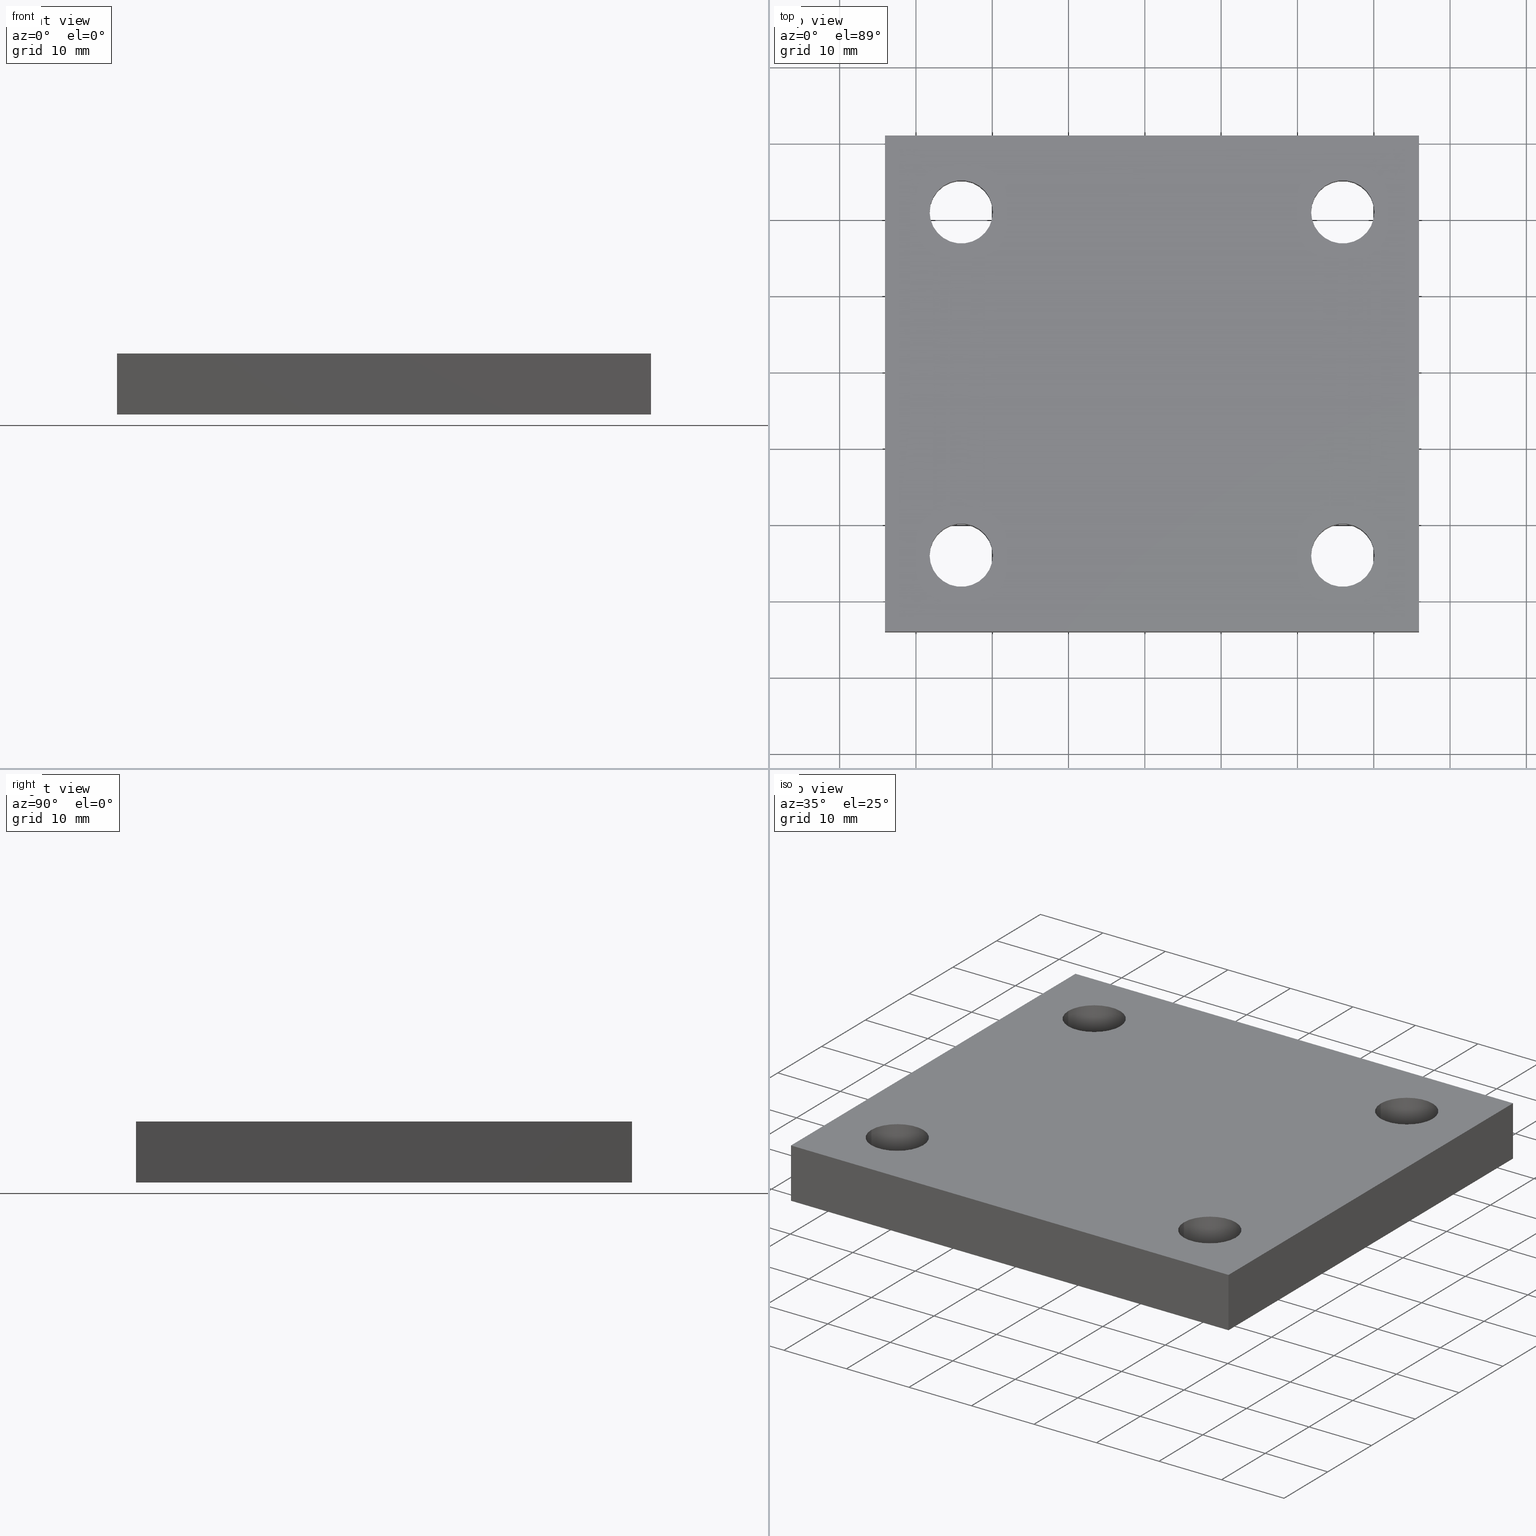
[diagram: canonical four-view strip — front | top / right | iso, engineering-drawing reading convention]
A machine part, canonical four-view strip (front | top / right | iso — engineering-drawing reading convention). The complete STEP part file that produces these views, byte-faithful:
ISO-10303-21;
HEADER;
/****************************************************************
 * Generated by software with PDE/Lib inside                    *
 * PDElib Version 4.0, created Mon Oct 07, 2002 at 18:44:48     *
 * International Technegroup Inc. (www.iti-oh.com)              *
 ****************************************************************/
FILE_DESCRIPTION((''),'2;1');
FILE_NAME('C:\\DATA\\V�KRESY 2004\\UP�NKY\\P��SLU�ENSTV� PRO T̎K� UP�NKY\\616P4.stp','2005-09-29T15:04:47',('CAD'),(''),'Autodesk Inventor 8','Autodesk Inventor 8','');
FILE_SCHEMA(('AUTOMOTIVE_DESIGN { 1 0 10303 214 1 1 1 1 }'));
ENDSEC;
DATA;
#5=APPLICATION_CONTEXT('automotive design');
#6=APPLICATION_PROTOCOL_DEFINITION('Draft International Standard','automotive_design',1998,#5);
#7=PRODUCT_CONTEXT('None',#5,'mechanical');
#8=PRODUCT('616-25E1','616-25E1','None',(#7));
#9=PRODUCT_RELATED_PRODUCT_CATEGORY('part','description',(#8));
#10=PRODUCT_DEFINITION_FORMATION('None','None',#8);
#11=PRODUCT_DEFINITION_CONTEXT('part definition',#5,'design');
#12=PRODUCT_DEFINITION('None','None',#10,#11);
#18=(NAMED_UNIT(*)PLANE_ANGLE_UNIT()SI_UNIT($,.RADIAN.));
#19=DIMENSIONAL_EXPONENTS(0.0,0.0,0.0,0.0,0.0,0.0,0.0);
#20=PLANE_ANGLE_MEASURE_WITH_UNIT(PLANE_ANGLE_MEASURE(0.017453292500000),#18);
#24=(CONVERSION_BASED_UNIT('DEGREE',#20)NAMED_UNIT(#19)PLANE_ANGLE_UNIT());
#28=(NAMED_UNIT(*)SI_UNIT($,.STERADIAN.)SOLID_ANGLE_UNIT());
#32=(LENGTH_UNIT()NAMED_UNIT(*)SI_UNIT(.MILLI.,.METRE.));
#34=UNCERTAINTY_MEASURE_WITH_UNIT(LENGTH_MEASURE(0.000001000000000),#32,'DISTANCE_ACCURACY_VALUE','');
#36=(GEOMETRIC_REPRESENTATION_CONTEXT(3)GLOBAL_UNCERTAINTY_ASSIGNED_CONTEXT((#34))GLOBAL_UNIT_ASSIGNED_CONTEXT((#24,#28,#32))REPRESENTATION_CONTEXT('None','None'));
#37=AXIS2_PLACEMENT_3D('',#38,#39,#40);
#38=CARTESIAN_POINT('',(0.0,0.0,0.0));
#39=DIRECTION('',(0.0,0.0,1.0));
#40=DIRECTION('',(1.0,0.0,0.0));
#41=SHAPE_REPRESENTATION('',(#37),#36);
#42=PRODUCT_DEFINITION_SHAPE('','',#12);
#43=SHAPE_DEFINITION_REPRESENTATION(#42,#41);
#44=CARTESIAN_POINT('',(71.789752180801756,-44.027373815230888,8.0));
#45=CARTESIAN_POINT('',(71.789752180801756,-44.027373815230888,0.0));
#46=CARTESIAN_POINT('',(71.789752180801756,-48.177373815230894,8.0));
#47=CARTESIAN_POINT('',(71.789752180801756,-48.177373815230894,0.0));
#48=CARTESIAN_POINT('',(75.939752180801761,-48.177373815230894,8.0));
#49=CARTESIAN_POINT('',(75.939752180801761,-48.177373815230894,0.0));
#50=CARTESIAN_POINT('',(80.089752180801767,-48.177373815230894,8.0));
#51=CARTESIAN_POINT('',(80.089752180801767,-48.177373815230894,0.0));
#52=CARTESIAN_POINT('',(80.089752180801767,-44.027373815230888,8.0));
#53=CARTESIAN_POINT('',(80.089752180801767,-44.027373815230888,0.0));
#54=CARTESIAN_POINT('',(80.089752180801767,-39.877373815230882,8.0));
#55=CARTESIAN_POINT('',(80.089752180801767,-39.877373815230882,0.0));
#56=CARTESIAN_POINT('',(75.939752180801761,-39.877373815230882,8.0));
#57=CARTESIAN_POINT('',(75.939752180801761,-39.877373815230882,0.0));
#58=CARTESIAN_POINT('',(71.789752180801756,-39.877373815230882,8.0));
#59=CARTESIAN_POINT('',(71.789752180801756,-39.877373815230882,0.0));
#60=CARTESIAN_POINT('',(71.789752180801756,-44.027373815230888,8.0));
#61=CARTESIAN_POINT('',(71.789752180801756,-44.027373815230888,0.0));
#69=(BOUNDED_SURFACE()B_SPLINE_SURFACE(1,2,((#44,#46,#48,#50,#52,#54,#56,#58,#60),(#45,#47,#49,#51,#53,#55,#57,#59,#61)),.UNSPECIFIED.,.F.,.T.,.U.)B_SPLINE_SURFACE_WITH_KNOTS((2,2),(3,2,2,2,3),(-0.963855421686747,0.963855421686747),(0.0,6.518804756198821,13.037609512397642,19.556414268596463,26.075219024795285),.UNSPECIFIED.)GEOMETRIC_REPRESENTATION_ITEM()RATIONAL_B_SPLINE_SURFACE(((1.0,0.707106781186548,1.0,0.707106781186548,1.0,0.707106781186548,1.0,0.707106781186548,1.0),(1.0,0.707106781186548,1.0,0.707106781186548,1.0,0.707106781186548,1.0,0.707106781186548,1.0)))REPRESENTATION_ITEM('')SURFACE());
#70=CARTESIAN_POINT('',(80.089752180801753,-44.027373815230888,0.0));
#71=VERTEX_POINT('',#70);
#72=CARTESIAN_POINT('',(80.089752180801753,-44.027373815230888,8.0));
#73=VERTEX_POINT('',#72);
#74=CARTESIAN_POINT('',(80.089752180801753,-44.027373815230888,0.0));
#75=DIRECTION('',(0.0,0.0,1.0));
#76=VECTOR('',#75,8.0);
#77=LINE('',#74,#76);
#78=EDGE_CURVE('',#71,#73,#77,.T.);
#79=ORIENTED_EDGE('',*,*,#78,.F.);
#80=CARTESIAN_POINT('',(71.789752180801756,-44.027373815230888,0.0));
#81=VERTEX_POINT('',#80);
#82=CARTESIAN_POINT('',(75.939752180801761,-44.027373815230888,0.0));
#83=DIRECTION('',(0.0,0.0,1.0));
#84=DIRECTION('',(1.0,0.0,0.0));
#85=AXIS2_PLACEMENT_3D('',#82,#83,#84);
#86=CIRCLE('',#85,4.150000000000000);
#87=EDGE_CURVE('',#81,#71,#86,.T.);
#88=ORIENTED_EDGE('',*,*,#87,.F.);
#89=CARTESIAN_POINT('',(71.789752180801756,-44.027373815230888,8.0));
#90=VERTEX_POINT('',#89);
#91=CARTESIAN_POINT('',(71.789752180801756,-44.027373815230888,8.0));
#92=DIRECTION('',(0.0,0.0,-1.0));
#93=VECTOR('',#92,8.0);
#94=LINE('',#91,#93);
#95=EDGE_CURVE('',#90,#81,#94,.T.);
#96=ORIENTED_EDGE('',*,*,#95,.F.);
#97=CARTESIAN_POINT('',(75.939752180801761,-44.027373815230888,8.0));
#98=DIRECTION('',(0.0,0.0,-1.0));
#99=DIRECTION('',(1.0,0.0,0.0));
#100=AXIS2_PLACEMENT_3D('',#97,#98,#99);
#101=CIRCLE('',#100,4.150000000000000);
#102=EDGE_CURVE('',#73,#90,#101,.T.);
#103=ORIENTED_EDGE('',*,*,#102,.F.);
#104=EDGE_LOOP('',(#79,#88,#96,#103));
#105=FACE_OUTER_BOUND('',#104,.T.);
#106=ADVANCED_FACE('',(#105),#69,.F.);
#107=CARTESIAN_POINT('',(71.789752180801756,0.972626184769104,8.0));
#108=CARTESIAN_POINT('',(71.789752180801756,0.972626184769104,0.0));
#109=CARTESIAN_POINT('',(71.789752180801756,-3.177373815230901,8.0));
#110=CARTESIAN_POINT('',(71.789752180801756,-3.177373815230901,0.0));
#111=CARTESIAN_POINT('',(75.939752180801761,-3.177373815230902,8.0));
#112=CARTESIAN_POINT('',(75.939752180801761,-3.177373815230902,0.0));
#113=CARTESIAN_POINT('',(80.089752180801767,-3.177373815230901,8.0));
#114=CARTESIAN_POINT('',(80.089752180801767,-3.177373815230901,0.0));
#115=CARTESIAN_POINT('',(80.089752180801767,0.972626184769105,8.0));
#116=CARTESIAN_POINT('',(80.089752180801767,0.972626184769105,0.0));
#117=CARTESIAN_POINT('',(80.089752180801767,5.122626184769110,8.0));
#118=CARTESIAN_POINT('',(80.089752180801767,5.122626184769110,0.0));
#119=CARTESIAN_POINT('',(75.939752180801761,5.122626184769110,8.0));
#120=CARTESIAN_POINT('',(75.939752180801761,5.122626184769110,0.0));
#121=CARTESIAN_POINT('',(71.789752180801756,5.122626184769108,8.0));
#122=CARTESIAN_POINT('',(71.789752180801756,5.122626184769108,0.0));
#123=CARTESIAN_POINT('',(71.789752180801756,0.972626184769104,8.0));
#124=CARTESIAN_POINT('',(71.789752180801756,0.972626184769104,0.0));
#132=(BOUNDED_SURFACE()B_SPLINE_SURFACE(1,2,((#107,#109,#111,#113,#115,#117,#119,#121,#123),(#108,#110,#112,#114,#116,#118,#120,#122,#124)),.UNSPECIFIED.,.F.,.T.,.U.)B_SPLINE_SURFACE_WITH_KNOTS((2,2),(3,2,2,2,3),(-0.963855421686747,0.963855421686747),(0.0,6.518804756198821,13.037609512397642,19.556414268596463,26.075219024795285),.UNSPECIFIED.)GEOMETRIC_REPRESENTATION_ITEM()RATIONAL_B_SPLINE_SURFACE(((1.0,0.707106781186548,1.0,0.707106781186548,1.0,0.707106781186548,1.0,0.707106781186548,1.0),(1.0,0.707106781186548,1.0,0.707106781186548,1.0,0.707106781186548,1.0,0.707106781186548,1.0)))REPRESENTATION_ITEM('')SURFACE());
#133=CARTESIAN_POINT('',(80.089752180801753,0.972626184769104,0.0));
#134=VERTEX_POINT('',#133);
#135=CARTESIAN_POINT('',(80.089752180801753,0.972626184769104,8.0));
#136=VERTEX_POINT('',#135);
#137=CARTESIAN_POINT('',(80.089752180801753,0.972626184769104,0.0));
#138=DIRECTION('',(0.0,0.0,1.0));
#139=VECTOR('',#138,8.0);
#140=LINE('',#137,#139);
#141=EDGE_CURVE('',#134,#136,#140,.T.);
#142=ORIENTED_EDGE('',*,*,#141,.F.);
#143=CARTESIAN_POINT('',(71.789752180801756,0.972626184769105,0.0));
#144=VERTEX_POINT('',#143);
#145=CARTESIAN_POINT('',(75.939752180801761,0.972626184769104,0.0));
#146=DIRECTION('',(0.0,0.0,1.0));
#147=DIRECTION('',(1.0,0.0,0.0));
#148=AXIS2_PLACEMENT_3D('',#145,#146,#147);
#149=CIRCLE('',#148,4.150000000000000);
#150=EDGE_CURVE('',#144,#134,#149,.T.);
#151=ORIENTED_EDGE('',*,*,#150,.F.);
#152=CARTESIAN_POINT('',(71.789752180801756,0.972626184769105,8.0));
#153=VERTEX_POINT('',#152);
#154=CARTESIAN_POINT('',(71.789752180801756,0.972626184769105,8.0));
#155=DIRECTION('',(0.0,0.0,-1.0));
#156=VECTOR('',#155,8.0);
#157=LINE('',#154,#156);
#158=EDGE_CURVE('',#153,#144,#157,.T.);
#159=ORIENTED_EDGE('',*,*,#158,.F.);
#160=CARTESIAN_POINT('',(75.939752180801761,0.972626184769104,8.0));
#161=DIRECTION('',(0.0,0.0,-1.0));
#162=DIRECTION('',(1.0,0.0,0.0));
#163=AXIS2_PLACEMENT_3D('',#160,#161,#162);
#164=CIRCLE('',#163,4.150000000000000);
#165=EDGE_CURVE('',#136,#153,#164,.T.);
#166=ORIENTED_EDGE('',*,*,#165,.F.);
#167=EDGE_LOOP('',(#142,#151,#159,#166));
#168=FACE_OUTER_BOUND('',#167,.T.);
#169=ADVANCED_FACE('',(#168),#132,.F.);
#170=CARTESIAN_POINT('',(21.789752180801720,0.972626184769104,8.0));
#171=CARTESIAN_POINT('',(21.789752180801720,0.972626184769104,0.0));
#172=CARTESIAN_POINT('',(21.789752180801720,-3.177373815230894,8.0));
#173=CARTESIAN_POINT('',(21.789752180801720,-3.177373815230894,0.0));
#174=CARTESIAN_POINT('',(25.939752180801719,-3.177373815230895,8.0));
#175=CARTESIAN_POINT('',(25.939752180801719,-3.177373815230895,0.0));
#176=CARTESIAN_POINT('',(30.089752180801721,-3.177373815230893,8.0));
#177=CARTESIAN_POINT('',(30.089752180801721,-3.177373815230893,0.0));
#178=CARTESIAN_POINT('',(30.089752180801717,0.972626184769105,8.0));
#179=CARTESIAN_POINT('',(30.089752180801717,0.972626184769105,0.0));
#180=CARTESIAN_POINT('',(30.089752180801721,5.122626184769103,8.0));
#181=CARTESIAN_POINT('',(30.089752180801721,5.122626184769103,0.0));
#182=CARTESIAN_POINT('',(25.939752180801719,5.122626184769103,8.0));
#183=CARTESIAN_POINT('',(25.939752180801719,5.122626184769103,0.0));
#184=CARTESIAN_POINT('',(21.789752180801720,5.122626184769101,8.0));
#185=CARTESIAN_POINT('',(21.789752180801720,5.122626184769101,0.0));
#186=CARTESIAN_POINT('',(21.789752180801720,0.972626184769104,8.0));
#187=CARTESIAN_POINT('',(21.789752180801720,0.972626184769104,0.0));
#195=(BOUNDED_SURFACE()B_SPLINE_SURFACE(1,2,((#170,#172,#174,#176,#178,#180,#182,#184,#186),(#171,#173,#175,#177,#179,#181,#183,#185,#187)),.UNSPECIFIED.,.F.,.T.,.U.)B_SPLINE_SURFACE_WITH_KNOTS((2,2),(3,2,2,2,3),(-0.963855421686747,0.963855421686747),(0.0,6.518804756198821,13.037609512397642,19.556414268596463,26.075219024795285),.UNSPECIFIED.)GEOMETRIC_REPRESENTATION_ITEM()RATIONAL_B_SPLINE_SURFACE(((1.0,0.707106781186548,1.0,0.707106781186548,1.0,0.707106781186548,1.0,0.707106781186548,1.0),(1.0,0.707106781186548,1.0,0.707106781186548,1.0,0.707106781186548,1.0,0.707106781186548,1.0)))REPRESENTATION_ITEM('')SURFACE());
#196=CARTESIAN_POINT('',(30.089752180801721,0.972626184769104,0.0));
#197=VERTEX_POINT('',#196);
#198=CARTESIAN_POINT('',(30.089752180801721,0.972626184769104,8.0));
#199=VERTEX_POINT('',#198);
#200=CARTESIAN_POINT('',(30.089752180801721,0.972626184769104,0.0));
#201=DIRECTION('',(0.0,0.0,1.0));
#202=VECTOR('',#201,8.0);
#203=LINE('',#200,#202);
#204=EDGE_CURVE('',#197,#199,#203,.T.);
#205=ORIENTED_EDGE('',*,*,#204,.F.);
#206=CARTESIAN_POINT('',(21.789752180801720,0.972626184769105,0.0));
#207=VERTEX_POINT('',#206);
#208=CARTESIAN_POINT('',(25.939752180801719,0.972626184769104,0.0));
#209=DIRECTION('',(0.0,0.0,1.0));
#210=DIRECTION('',(1.0,0.0,0.0));
#211=AXIS2_PLACEMENT_3D('',#208,#209,#210);
#212=CIRCLE('',#211,4.150000000000000);
#213=EDGE_CURVE('',#207,#197,#212,.T.);
#214=ORIENTED_EDGE('',*,*,#213,.F.);
#215=CARTESIAN_POINT('',(21.789752180801720,0.972626184769105,8.0));
#216=VERTEX_POINT('',#215);
#217=CARTESIAN_POINT('',(21.789752180801720,0.972626184769105,8.0));
#218=DIRECTION('',(0.0,0.0,-1.0));
#219=VECTOR('',#218,8.0);
#220=LINE('',#217,#219);
#221=EDGE_CURVE('',#216,#207,#220,.T.);
#222=ORIENTED_EDGE('',*,*,#221,.F.);
#223=CARTESIAN_POINT('',(25.939752180801719,0.972626184769104,8.0));
#224=DIRECTION('',(0.0,0.0,-1.0));
#225=DIRECTION('',(1.0,0.0,0.0));
#226=AXIS2_PLACEMENT_3D('',#223,#224,#225);
#227=CIRCLE('',#226,4.150000000000000);
#228=EDGE_CURVE('',#199,#216,#227,.T.);
#229=ORIENTED_EDGE('',*,*,#228,.F.);
#230=EDGE_LOOP('',(#205,#214,#222,#229));
#231=FACE_OUTER_BOUND('',#230,.T.);
#232=ADVANCED_FACE('',(#231),#195,.F.);
#233=CARTESIAN_POINT('',(21.789752180801720,-44.027373815230888,8.0));
#234=CARTESIAN_POINT('',(21.789752180801720,-44.027373815230888,0.0));
#235=CARTESIAN_POINT('',(21.789752180801720,-48.177373815230887,8.0));
#236=CARTESIAN_POINT('',(21.789752180801720,-48.177373815230887,0.0));
#237=CARTESIAN_POINT('',(25.939752180801719,-48.177373815230887,8.0));
#238=CARTESIAN_POINT('',(25.939752180801719,-48.177373815230887,0.0));
#239=CARTESIAN_POINT('',(30.089752180801721,-48.177373815230887,8.0));
#240=CARTESIAN_POINT('',(30.089752180801721,-48.177373815230887,0.0));
#241=CARTESIAN_POINT('',(30.089752180801717,-44.027373815230888,8.0));
#242=CARTESIAN_POINT('',(30.089752180801717,-44.027373815230888,0.0));
#243=CARTESIAN_POINT('',(30.089752180801721,-39.877373815230889,8.0));
#244=CARTESIAN_POINT('',(30.089752180801721,-39.877373815230889,0.0));
#245=CARTESIAN_POINT('',(25.939752180801719,-39.877373815230889,8.0));
#246=CARTESIAN_POINT('',(25.939752180801719,-39.877373815230889,0.0));
#247=CARTESIAN_POINT('',(21.789752180801720,-39.877373815230889,8.0));
#248=CARTESIAN_POINT('',(21.789752180801720,-39.877373815230889,0.0));
#249=CARTESIAN_POINT('',(21.789752180801720,-44.027373815230888,8.0));
#250=CARTESIAN_POINT('',(21.789752180801720,-44.027373815230888,0.0));
#258=(BOUNDED_SURFACE()B_SPLINE_SURFACE(1,2,((#233,#235,#237,#239,#241,#243,#245,#247,#249),(#234,#236,#238,#240,#242,#244,#246,#248,#250)),.UNSPECIFIED.,.F.,.T.,.U.)B_SPLINE_SURFACE_WITH_KNOTS((2,2),(3,2,2,2,3),(-0.963855421686747,0.963855421686747),(0.0,6.518804756198821,13.037609512397642,19.556414268596463,26.075219024795285),.UNSPECIFIED.)GEOMETRIC_REPRESENTATION_ITEM()RATIONAL_B_SPLINE_SURFACE(((1.0,0.707106781186548,1.0,0.707106781186548,1.0,0.707106781186548,1.0,0.707106781186548,1.0),(1.0,0.707106781186548,1.0,0.707106781186548,1.0,0.707106781186548,1.0,0.707106781186548,1.0)))REPRESENTATION_ITEM('')SURFACE());
#259=CARTESIAN_POINT('',(30.089752180801721,-44.027373815230888,0.0));
#260=VERTEX_POINT('',#259);
#261=CARTESIAN_POINT('',(30.089752180801721,-44.027373815230888,8.0));
#262=VERTEX_POINT('',#261);
#263=CARTESIAN_POINT('',(30.089752180801721,-44.027373815230888,0.0));
#264=DIRECTION('',(0.0,0.0,1.0));
#265=VECTOR('',#264,8.0);
#266=LINE('',#263,#265);
#267=EDGE_CURVE('',#260,#262,#266,.T.);
#268=ORIENTED_EDGE('',*,*,#267,.F.);
#269=CARTESIAN_POINT('',(21.789752180801720,-44.027373815230888,0.0));
#270=VERTEX_POINT('',#269);
#271=CARTESIAN_POINT('',(25.939752180801719,-44.027373815230888,0.0));
#272=DIRECTION('',(0.0,0.0,1.0));
#273=DIRECTION('',(1.0,0.0,0.0));
#274=AXIS2_PLACEMENT_3D('',#271,#272,#273);
#275=CIRCLE('',#274,4.150000000000000);
#276=EDGE_CURVE('',#270,#260,#275,.T.);
#277=ORIENTED_EDGE('',*,*,#276,.F.);
#278=CARTESIAN_POINT('',(21.789752180801720,-44.027373815230888,8.0));
#279=VERTEX_POINT('',#278);
#280=CARTESIAN_POINT('',(21.789752180801720,-44.027373815230888,8.0));
#281=DIRECTION('',(0.0,0.0,-1.0));
#282=VECTOR('',#281,8.0);
#283=LINE('',#280,#282);
#284=EDGE_CURVE('',#279,#270,#283,.T.);
#285=ORIENTED_EDGE('',*,*,#284,.F.);
#286=CARTESIAN_POINT('',(25.939752180801719,-44.027373815230888,8.0));
#287=DIRECTION('',(0.0,0.0,-1.0));
#288=DIRECTION('',(1.0,0.0,0.0));
#289=AXIS2_PLACEMENT_3D('',#286,#287,#288);
#290=CIRCLE('',#289,4.150000000000000);
#291=EDGE_CURVE('',#262,#279,#290,.T.);
#292=ORIENTED_EDGE('',*,*,#291,.F.);
#293=EDGE_LOOP('',(#268,#277,#285,#292));
#294=FACE_OUTER_BOUND('',#293,.T.);
#295=ADVANCED_FACE('',(#294),#258,.F.);
#296=CARTESIAN_POINT('',(21.789752180801720,-44.027373815230888,8.0));
#297=CARTESIAN_POINT('',(21.789752180801720,-44.027373815230888,0.0));
#298=CARTESIAN_POINT('',(21.789752180801720,-48.177373815230887,8.0));
#299=CARTESIAN_POINT('',(21.789752180801720,-48.177373815230887,0.0));
#300=CARTESIAN_POINT('',(25.939752180801719,-48.177373815230887,8.0));
#301=CARTESIAN_POINT('',(25.939752180801719,-48.177373815230887,0.0));
#302=CARTESIAN_POINT('',(30.089752180801721,-48.177373815230887,8.0));
#303=CARTESIAN_POINT('',(30.089752180801721,-48.177373815230887,0.0));
#304=CARTESIAN_POINT('',(30.089752180801717,-44.027373815230888,8.0));
#305=CARTESIAN_POINT('',(30.089752180801717,-44.027373815230888,0.0));
#306=CARTESIAN_POINT('',(30.089752180801721,-39.877373815230889,8.0));
#307=CARTESIAN_POINT('',(30.089752180801721,-39.877373815230889,0.0));
#308=CARTESIAN_POINT('',(25.939752180801719,-39.877373815230889,8.0));
#309=CARTESIAN_POINT('',(25.939752180801719,-39.877373815230889,0.0));
#310=CARTESIAN_POINT('',(21.789752180801720,-39.877373815230889,8.0));
#311=CARTESIAN_POINT('',(21.789752180801720,-39.877373815230889,0.0));
#312=CARTESIAN_POINT('',(21.789752180801720,-44.027373815230888,8.0));
#313=CARTESIAN_POINT('',(21.789752180801720,-44.027373815230888,0.0));
#321=(BOUNDED_SURFACE()B_SPLINE_SURFACE(1,2,((#296,#298,#300,#302,#304,#306,#308,#310,#312),(#297,#299,#301,#303,#305,#307,#309,#311,#313)),.UNSPECIFIED.,.F.,.T.,.U.)B_SPLINE_SURFACE_WITH_KNOTS((2,2),(3,2,2,2,3),(-0.963855421686747,0.963855421686747),(0.0,6.518804756198821,13.037609512397642,19.556414268596463,26.075219024795285),.UNSPECIFIED.)GEOMETRIC_REPRESENTATION_ITEM()RATIONAL_B_SPLINE_SURFACE(((1.0,0.707106781186548,1.0,0.707106781186548,1.0,0.707106781186548,1.0,0.707106781186548,1.0),(1.0,0.707106781186548,1.0,0.707106781186548,1.0,0.707106781186548,1.0,0.707106781186548,1.0)))REPRESENTATION_ITEM('')SURFACE());
#322=ORIENTED_EDGE('',*,*,#267,.T.);
#323=CARTESIAN_POINT('',(25.939752180801719,-44.027373815230888,8.0));
#324=DIRECTION('',(0.0,0.0,-1.0));
#325=DIRECTION('',(1.0,0.0,0.0));
#326=AXIS2_PLACEMENT_3D('',#323,#324,#325);
#327=CIRCLE('',#326,4.150000000000000);
#328=EDGE_CURVE('',#279,#262,#327,.T.);
#329=ORIENTED_EDGE('',*,*,#328,.F.);
#330=ORIENTED_EDGE('',*,*,#284,.T.);
#331=CARTESIAN_POINT('',(25.939752180801719,-44.027373815230888,0.0));
#332=DIRECTION('',(0.0,0.0,1.0));
#333=DIRECTION('',(1.0,0.0,0.0));
#334=AXIS2_PLACEMENT_3D('',#331,#332,#333);
#335=CIRCLE('',#334,4.150000000000000);
#336=EDGE_CURVE('',#260,#270,#335,.T.);
#337=ORIENTED_EDGE('',*,*,#336,.F.);
#338=EDGE_LOOP('',(#322,#329,#330,#337));
#339=FACE_OUTER_BOUND('',#338,.T.);
#340=ADVANCED_FACE('',(#339),#321,.F.);
#341=CARTESIAN_POINT('',(21.789752180801720,0.972626184769104,8.0));
#342=CARTESIAN_POINT('',(21.789752180801720,0.972626184769104,0.0));
#343=CARTESIAN_POINT('',(21.789752180801720,-3.177373815230894,8.0));
#344=CARTESIAN_POINT('',(21.789752180801720,-3.177373815230894,0.0));
#345=CARTESIAN_POINT('',(25.939752180801719,-3.177373815230895,8.0));
#346=CARTESIAN_POINT('',(25.939752180801719,-3.177373815230895,0.0));
#347=CARTESIAN_POINT('',(30.089752180801721,-3.177373815230893,8.0));
#348=CARTESIAN_POINT('',(30.089752180801721,-3.177373815230893,0.0));
#349=CARTESIAN_POINT('',(30.089752180801717,0.972626184769105,8.0));
#350=CARTESIAN_POINT('',(30.089752180801717,0.972626184769105,0.0));
#351=CARTESIAN_POINT('',(30.089752180801721,5.122626184769103,8.0));
#352=CARTESIAN_POINT('',(30.089752180801721,5.122626184769103,0.0));
#353=CARTESIAN_POINT('',(25.939752180801719,5.122626184769103,8.0));
#354=CARTESIAN_POINT('',(25.939752180801719,5.122626184769103,0.0));
#355=CARTESIAN_POINT('',(21.789752180801720,5.122626184769101,8.0));
#356=CARTESIAN_POINT('',(21.789752180801720,5.122626184769101,0.0));
#357=CARTESIAN_POINT('',(21.789752180801720,0.972626184769104,8.0));
#358=CARTESIAN_POINT('',(21.789752180801720,0.972626184769104,0.0));
#366=(BOUNDED_SURFACE()B_SPLINE_SURFACE(1,2,((#341,#343,#345,#347,#349,#351,#353,#355,#357),(#342,#344,#346,#348,#350,#352,#354,#356,#358)),.UNSPECIFIED.,.F.,.T.,.U.)B_SPLINE_SURFACE_WITH_KNOTS((2,2),(3,2,2,2,3),(-0.963855421686747,0.963855421686747),(0.0,6.518804756198821,13.037609512397642,19.556414268596463,26.075219024795285),.UNSPECIFIED.)GEOMETRIC_REPRESENTATION_ITEM()RATIONAL_B_SPLINE_SURFACE(((1.0,0.707106781186548,1.0,0.707106781186548,1.0,0.707106781186548,1.0,0.707106781186548,1.0),(1.0,0.707106781186548,1.0,0.707106781186548,1.0,0.707106781186548,1.0,0.707106781186548,1.0)))REPRESENTATION_ITEM('')SURFACE());
#367=ORIENTED_EDGE('',*,*,#204,.T.);
#368=CARTESIAN_POINT('',(25.939752180801719,0.972626184769104,8.0));
#369=DIRECTION('',(0.0,0.0,-1.0));
#370=DIRECTION('',(1.0,0.0,0.0));
#371=AXIS2_PLACEMENT_3D('',#368,#369,#370);
#372=CIRCLE('',#371,4.150000000000000);
#373=EDGE_CURVE('',#216,#199,#372,.T.);
#374=ORIENTED_EDGE('',*,*,#373,.F.);
#375=ORIENTED_EDGE('',*,*,#221,.T.);
#376=CARTESIAN_POINT('',(25.939752180801719,0.972626184769104,0.0));
#377=DIRECTION('',(0.0,0.0,1.0));
#378=DIRECTION('',(1.0,0.0,0.0));
#379=AXIS2_PLACEMENT_3D('',#376,#377,#378);
#380=CIRCLE('',#379,4.150000000000000);
#381=EDGE_CURVE('',#197,#207,#380,.T.);
#382=ORIENTED_EDGE('',*,*,#381,.F.);
#383=EDGE_LOOP('',(#367,#374,#375,#382));
#384=FACE_OUTER_BOUND('',#383,.T.);
#385=ADVANCED_FACE('',(#384),#366,.F.);
#386=CARTESIAN_POINT('',(71.789752180801756,0.972626184769104,8.0));
#387=CARTESIAN_POINT('',(71.789752180801756,0.972626184769104,0.0));
#388=CARTESIAN_POINT('',(71.789752180801756,-3.177373815230901,8.0));
#389=CARTESIAN_POINT('',(71.789752180801756,-3.177373815230901,0.0));
#390=CARTESIAN_POINT('',(75.939752180801761,-3.177373815230902,8.0));
#391=CARTESIAN_POINT('',(75.939752180801761,-3.177373815230902,0.0));
#392=CARTESIAN_POINT('',(80.089752180801767,-3.177373815230901,8.0));
#393=CARTESIAN_POINT('',(80.089752180801767,-3.177373815230901,0.0));
#394=CARTESIAN_POINT('',(80.089752180801767,0.972626184769105,8.0));
#395=CARTESIAN_POINT('',(80.089752180801767,0.972626184769105,0.0));
#396=CARTESIAN_POINT('',(80.089752180801767,5.122626184769110,8.0));
#397=CARTESIAN_POINT('',(80.089752180801767,5.122626184769110,0.0));
#398=CARTESIAN_POINT('',(75.939752180801761,5.122626184769110,8.0));
#399=CARTESIAN_POINT('',(75.939752180801761,5.122626184769110,0.0));
#400=CARTESIAN_POINT('',(71.789752180801756,5.122626184769108,8.0));
#401=CARTESIAN_POINT('',(71.789752180801756,5.122626184769108,0.0));
#402=CARTESIAN_POINT('',(71.789752180801756,0.972626184769104,8.0));
#403=CARTESIAN_POINT('',(71.789752180801756,0.972626184769104,0.0));
#411=(BOUNDED_SURFACE()B_SPLINE_SURFACE(1,2,((#386,#388,#390,#392,#394,#396,#398,#400,#402),(#387,#389,#391,#393,#395,#397,#399,#401,#403)),.UNSPECIFIED.,.F.,.T.,.U.)B_SPLINE_SURFACE_WITH_KNOTS((2,2),(3,2,2,2,3),(-0.963855421686747,0.963855421686747),(0.0,6.518804756198821,13.037609512397642,19.556414268596463,26.075219024795285),.UNSPECIFIED.)GEOMETRIC_REPRESENTATION_ITEM()RATIONAL_B_SPLINE_SURFACE(((1.0,0.707106781186548,1.0,0.707106781186548,1.0,0.707106781186548,1.0,0.707106781186548,1.0),(1.0,0.707106781186548,1.0,0.707106781186548,1.0,0.707106781186548,1.0,0.707106781186548,1.0)))REPRESENTATION_ITEM('')SURFACE());
#412=ORIENTED_EDGE('',*,*,#141,.T.);
#413=CARTESIAN_POINT('',(75.939752180801761,0.972626184769104,8.0));
#414=DIRECTION('',(0.0,0.0,-1.0));
#415=DIRECTION('',(1.0,0.0,0.0));
#416=AXIS2_PLACEMENT_3D('',#413,#414,#415);
#417=CIRCLE('',#416,4.150000000000000);
#418=EDGE_CURVE('',#153,#136,#417,.T.);
#419=ORIENTED_EDGE('',*,*,#418,.F.);
#420=ORIENTED_EDGE('',*,*,#158,.T.);
#421=CARTESIAN_POINT('',(75.939752180801761,0.972626184769104,0.0));
#422=DIRECTION('',(0.0,0.0,1.0));
#423=DIRECTION('',(1.0,0.0,0.0));
#424=AXIS2_PLACEMENT_3D('',#421,#422,#423);
#425=CIRCLE('',#424,4.150000000000000);
#426=EDGE_CURVE('',#134,#144,#425,.T.);
#427=ORIENTED_EDGE('',*,*,#426,.F.);
#428=EDGE_LOOP('',(#412,#419,#420,#427));
#429=FACE_OUTER_BOUND('',#428,.T.);
#430=ADVANCED_FACE('',(#429),#411,.F.);
#431=CARTESIAN_POINT('',(71.789752180801756,-44.027373815230888,8.0));
#432=CARTESIAN_POINT('',(71.789752180801756,-44.027373815230888,0.0));
#433=CARTESIAN_POINT('',(71.789752180801756,-48.177373815230894,8.0));
#434=CARTESIAN_POINT('',(71.789752180801756,-48.177373815230894,0.0));
#435=CARTESIAN_POINT('',(75.939752180801761,-48.177373815230894,8.0));
#436=CARTESIAN_POINT('',(75.939752180801761,-48.177373815230894,0.0));
#437=CARTESIAN_POINT('',(80.089752180801767,-48.177373815230894,8.0));
#438=CARTESIAN_POINT('',(80.089752180801767,-48.177373815230894,0.0));
#439=CARTESIAN_POINT('',(80.089752180801767,-44.027373815230888,8.0));
#440=CARTESIAN_POINT('',(80.089752180801767,-44.027373815230888,0.0));
#441=CARTESIAN_POINT('',(80.089752180801767,-39.877373815230882,8.0));
#442=CARTESIAN_POINT('',(80.089752180801767,-39.877373815230882,0.0));
#443=CARTESIAN_POINT('',(75.939752180801761,-39.877373815230882,8.0));
#444=CARTESIAN_POINT('',(75.939752180801761,-39.877373815230882,0.0));
#445=CARTESIAN_POINT('',(71.789752180801756,-39.877373815230882,8.0));
#446=CARTESIAN_POINT('',(71.789752180801756,-39.877373815230882,0.0));
#447=CARTESIAN_POINT('',(71.789752180801756,-44.027373815230888,8.0));
#448=CARTESIAN_POINT('',(71.789752180801756,-44.027373815230888,0.0));
#456=(BOUNDED_SURFACE()B_SPLINE_SURFACE(1,2,((#431,#433,#435,#437,#439,#441,#443,#445,#447),(#432,#434,#436,#438,#440,#442,#444,#446,#448)),.UNSPECIFIED.,.F.,.T.,.U.)B_SPLINE_SURFACE_WITH_KNOTS((2,2),(3,2,2,2,3),(-0.963855421686747,0.963855421686747),(0.0,6.518804756198821,13.037609512397642,19.556414268596463,26.075219024795285),.UNSPECIFIED.)GEOMETRIC_REPRESENTATION_ITEM()RATIONAL_B_SPLINE_SURFACE(((1.0,0.707106781186548,1.0,0.707106781186548,1.0,0.707106781186548,1.0,0.707106781186548,1.0),(1.0,0.707106781186548,1.0,0.707106781186548,1.0,0.707106781186548,1.0,0.707106781186548,1.0)))REPRESENTATION_ITEM('')SURFACE());
#457=ORIENTED_EDGE('',*,*,#78,.T.);
#458=CARTESIAN_POINT('',(75.939752180801761,-44.027373815230888,8.0));
#459=DIRECTION('',(0.0,0.0,-1.0));
#460=DIRECTION('',(1.0,0.0,0.0));
#461=AXIS2_PLACEMENT_3D('',#458,#459,#460);
#462=CIRCLE('',#461,4.150000000000000);
#463=EDGE_CURVE('',#90,#73,#462,.T.);
#464=ORIENTED_EDGE('',*,*,#463,.F.);
#465=ORIENTED_EDGE('',*,*,#95,.T.);
#466=CARTESIAN_POINT('',(75.939752180801761,-44.027373815230888,0.0));
#467=DIRECTION('',(0.0,0.0,1.0));
#468=DIRECTION('',(1.0,0.0,0.0));
#469=AXIS2_PLACEMENT_3D('',#466,#467,#468);
#470=CIRCLE('',#469,4.150000000000000);
#471=EDGE_CURVE('',#71,#81,#470,.T.);
#472=ORIENTED_EDGE('',*,*,#471,.F.);
#473=EDGE_LOOP('',(#457,#464,#465,#472));
#474=FACE_OUTER_BOUND('',#473,.T.);
#475=ADVANCED_FACE('',(#474),#456,.F.);
#476=CARTESIAN_POINT('',(85.939752180801733,10.972626184769112,0.0));
#477=DIRECTION('',(1.0,0.0,0.0));
#478=DIRECTION('',(0.0,0.0,-1.0));
#479=AXIS2_PLACEMENT_3D('',#476,#477,#478);
#480=PLANE('',#479);
#481=CARTESIAN_POINT('',(85.939752180801733,10.972626184769112,8.0));
#482=VERTEX_POINT('',#481);
#483=CARTESIAN_POINT('',(85.939752180801747,-54.027373815230888,8.0));
#484=VERTEX_POINT('',#483);
#485=CARTESIAN_POINT('',(85.939752180801733,10.972626184769112,8.0));
#486=DIRECTION('',(0.0,-1.0,0.0));
#487=VECTOR('',#486,65.0);
#488=LINE('',#485,#487);
#489=EDGE_CURVE('',#482,#484,#488,.T.);
#490=ORIENTED_EDGE('',*,*,#489,.T.);
#491=CARTESIAN_POINT('',(85.939752180801747,-54.027373815230888,0.0));
#492=VERTEX_POINT('',#491);
#493=CARTESIAN_POINT('',(85.939752180801747,-54.027373815230888,0.0));
#494=DIRECTION('',(0.0,0.0,1.0));
#495=VECTOR('',#494,8.0);
#496=LINE('',#493,#495);
#497=EDGE_CURVE('',#492,#484,#496,.T.);
#498=ORIENTED_EDGE('',*,*,#497,.F.);
#499=CARTESIAN_POINT('',(85.939752180801733,10.972626184769112,0.0));
#500=VERTEX_POINT('',#499);
#501=CARTESIAN_POINT('',(85.939752180801747,-54.027373815230888,0.0));
#502=DIRECTION('',(0.0,1.0,0.0));
#503=VECTOR('',#502,65.0);
#504=LINE('',#501,#503);
#505=EDGE_CURVE('',#492,#500,#504,.T.);
#506=ORIENTED_EDGE('',*,*,#505,.T.);
#507=CARTESIAN_POINT('',(85.939752180801733,10.972626184769112,0.0));
#508=DIRECTION('',(0.0,0.0,1.0));
#509=VECTOR('',#508,8.0);
#510=LINE('',#507,#509);
#511=EDGE_CURVE('',#500,#482,#510,.T.);
#512=ORIENTED_EDGE('',*,*,#511,.T.);
#513=EDGE_LOOP('',(#490,#498,#506,#512));
#514=FACE_OUTER_BOUND('',#513,.T.);
#515=ADVANCED_FACE('',(#514),#480,.T.);
#516=CARTESIAN_POINT('',(85.939752180801747,-54.027373815230888,0.0));
#517=DIRECTION('',(0.0,-1.0,0.0));
#518=DIRECTION('',(0.0,0.0,-1.0));
#519=AXIS2_PLACEMENT_3D('',#516,#517,#518);
#520=PLANE('',#519);
#521=CARTESIAN_POINT('',(15.939752180801719,-54.027373815230895,8.0));
#522=VERTEX_POINT('',#521);
#523=CARTESIAN_POINT('',(85.939752180801747,-54.027373815230888,8.0));
#524=DIRECTION('',(-1.0,0.0,0.0));
#525=VECTOR('',#524,70.000000000000028);
#526=LINE('',#523,#525);
#527=EDGE_CURVE('',#484,#522,#526,.T.);
#528=ORIENTED_EDGE('',*,*,#527,.T.);
#529=CARTESIAN_POINT('',(15.939752180801719,-54.027373815230895,0.0));
#530=VERTEX_POINT('',#529);
#531=CARTESIAN_POINT('',(15.939752180801719,-54.027373815230895,0.0));
#532=DIRECTION('',(0.0,0.0,1.0));
#533=VECTOR('',#532,8.0);
#534=LINE('',#531,#533);
#535=EDGE_CURVE('',#530,#522,#534,.T.);
#536=ORIENTED_EDGE('',*,*,#535,.F.);
#537=CARTESIAN_POINT('',(15.939752180801719,-54.027373815230895,0.0));
#538=DIRECTION('',(1.0,0.0,0.0));
#539=VECTOR('',#538,70.000000000000028);
#540=LINE('',#537,#539);
#541=EDGE_CURVE('',#530,#492,#540,.T.);
#542=ORIENTED_EDGE('',*,*,#541,.T.);
#543=ORIENTED_EDGE('',*,*,#497,.T.);
#544=EDGE_LOOP('',(#528,#536,#542,#543));
#545=FACE_OUTER_BOUND('',#544,.T.);
#546=ADVANCED_FACE('',(#545),#520,.T.);
#547=CARTESIAN_POINT('',(15.939752180801719,-54.027373815230895,0.0));
#548=DIRECTION('',(-1.0,0.0,0.0));
#549=DIRECTION('',(0.0,0.0,1.0));
#550=AXIS2_PLACEMENT_3D('',#547,#548,#549);
#551=PLANE('',#550);
#552=CARTESIAN_POINT('',(15.939752180801712,10.972626184769103,8.0));
#553=VERTEX_POINT('',#552);
#554=CARTESIAN_POINT('',(15.939752180801719,-54.027373815230895,8.0));
#555=DIRECTION('',(0.0,1.0,0.0));
#556=VECTOR('',#555,65.0);
#557=LINE('',#554,#556);
#558=EDGE_CURVE('',#522,#553,#557,.T.);
#559=ORIENTED_EDGE('',*,*,#558,.T.);
#560=CARTESIAN_POINT('',(15.939752180801712,10.972626184769103,0.0));
#561=VERTEX_POINT('',#560);
#562=CARTESIAN_POINT('',(15.939752180801712,10.972626184769103,0.0));
#563=DIRECTION('',(0.0,0.0,1.0));
#564=VECTOR('',#563,8.0);
#565=LINE('',#562,#564);
#566=EDGE_CURVE('',#561,#553,#565,.T.);
#567=ORIENTED_EDGE('',*,*,#566,.F.);
#568=CARTESIAN_POINT('',(15.939752180801712,10.972626184769103,0.0));
#569=DIRECTION('',(0.0,-1.0,0.0));
#570=VECTOR('',#569,65.0);
#571=LINE('',#568,#570);
#572=EDGE_CURVE('',#561,#530,#571,.T.);
#573=ORIENTED_EDGE('',*,*,#572,.T.);
#574=ORIENTED_EDGE('',*,*,#535,.T.);
#575=EDGE_LOOP('',(#559,#567,#573,#574));
#576=FACE_OUTER_BOUND('',#575,.T.);
#577=ADVANCED_FACE('',(#576),#551,.T.);
#578=CARTESIAN_POINT('',(15.939752180801712,10.972626184769103,0.0));
#579=DIRECTION('',(0.0,1.0,0.0));
#580=DIRECTION('',(0.0,0.0,1.0));
#581=AXIS2_PLACEMENT_3D('',#578,#579,#580);
#582=PLANE('',#581);
#583=CARTESIAN_POINT('',(15.939752180801712,10.972626184769103,8.0));
#584=DIRECTION('',(1.0,0.0,0.0));
#585=VECTOR('',#584,70.000000000000028);
#586=LINE('',#583,#585);
#587=EDGE_CURVE('',#553,#482,#586,.T.);
#588=ORIENTED_EDGE('',*,*,#587,.T.);
#589=ORIENTED_EDGE('',*,*,#511,.F.);
#590=CARTESIAN_POINT('',(85.939752180801733,10.972626184769112,0.0));
#591=DIRECTION('',(-1.0,0.0,0.0));
#592=VECTOR('',#591,70.000000000000028);
#593=LINE('',#590,#592);
#594=EDGE_CURVE('',#500,#561,#593,.T.);
#595=ORIENTED_EDGE('',*,*,#594,.T.);
#596=ORIENTED_EDGE('',*,*,#566,.T.);
#597=EDGE_LOOP('',(#588,#589,#595,#596));
#598=FACE_OUTER_BOUND('',#597,.T.);
#599=ADVANCED_FACE('',(#598),#582,.T.);
#600=CARTESIAN_POINT('',(50.939752180801733,-21.527373815230892,0.0));
#601=DIRECTION('',(0.0,0.0,1.0));
#602=DIRECTION('',(1.0,0.0,0.0));
#603=AXIS2_PLACEMENT_3D('',#600,#601,#602);
#604=PLANE('',#603);
#605=ORIENTED_EDGE('',*,*,#594,.F.);
#606=ORIENTED_EDGE('',*,*,#505,.F.);
#607=ORIENTED_EDGE('',*,*,#541,.F.);
#608=ORIENTED_EDGE('',*,*,#572,.F.);
#609=EDGE_LOOP('',(#605,#606,#607,#608));
#610=FACE_OUTER_BOUND('',#609,.T.);
#611=ORIENTED_EDGE('',*,*,#336,.T.);
#612=ORIENTED_EDGE('',*,*,#276,.T.);
#613=EDGE_LOOP('',(#611,#612));
#614=FACE_BOUND('',#613,.T.);
#615=ORIENTED_EDGE('',*,*,#381,.T.);
#616=ORIENTED_EDGE('',*,*,#213,.T.);
#617=EDGE_LOOP('',(#615,#616));
#618=FACE_BOUND('',#617,.T.);
#619=ORIENTED_EDGE('',*,*,#426,.T.);
#620=ORIENTED_EDGE('',*,*,#150,.T.);
#621=EDGE_LOOP('',(#619,#620));
#622=FACE_BOUND('',#621,.T.);
#623=ORIENTED_EDGE('',*,*,#471,.T.);
#624=ORIENTED_EDGE('',*,*,#87,.T.);
#625=EDGE_LOOP('',(#623,#624));
#626=FACE_BOUND('',#625,.T.);
#627=ADVANCED_FACE('',(#610,#614,#618,#622,#626),#604,.F.);
#628=CARTESIAN_POINT('',(50.939752180801733,-21.527373815230888,8.0));
#629=DIRECTION('',(0.0,0.0,1.0));
#630=DIRECTION('',(1.0,0.0,0.0));
#631=AXIS2_PLACEMENT_3D('',#628,#629,#630);
#632=PLANE('',#631);
#633=ORIENTED_EDGE('',*,*,#489,.F.);
#634=ORIENTED_EDGE('',*,*,#587,.F.);
#635=ORIENTED_EDGE('',*,*,#558,.F.);
#636=ORIENTED_EDGE('',*,*,#527,.F.);
#637=EDGE_LOOP('',(#633,#634,#635,#636));
#638=FACE_OUTER_BOUND('',#637,.T.);
#639=ORIENTED_EDGE('',*,*,#291,.T.);
#640=ORIENTED_EDGE('',*,*,#328,.T.);
#641=EDGE_LOOP('',(#639,#640));
#642=FACE_BOUND('',#641,.T.);
#643=ORIENTED_EDGE('',*,*,#228,.T.);
#644=ORIENTED_EDGE('',*,*,#373,.T.);
#645=EDGE_LOOP('',(#643,#644));
#646=FACE_BOUND('',#645,.T.);
#647=ORIENTED_EDGE('',*,*,#165,.T.);
#648=ORIENTED_EDGE('',*,*,#418,.T.);
#649=EDGE_LOOP('',(#647,#648));
#650=FACE_BOUND('',#649,.T.);
#651=ORIENTED_EDGE('',*,*,#102,.T.);
#652=ORIENTED_EDGE('',*,*,#463,.T.);
#653=EDGE_LOOP('',(#651,#652));
#654=FACE_BOUND('',#653,.T.);
#655=ADVANCED_FACE('',(#638,#642,#646,#650,#654),#632,.T.);
#656=CLOSED_SHELL('',(#106,#169,#232,#295,#340,#385,#430,#475,#515,#546,#577,#599,#627,#655));
#657=MANIFOLD_SOLID_BREP('',#656);
#658=COLOUR_RGB('Metal-Steel',0.639216005802155,0.639216005802155,0.686275005340576);
#659=FILL_AREA_STYLE_COLOUR('Metal-Steel',#658);
#660=FILL_AREA_STYLE('Metal-Steel',(#659));
#661=SURFACE_STYLE_FILL_AREA(#660);
#662=SURFACE_SIDE_STYLE('Metal-Steel',(#661));
#663=SURFACE_STYLE_USAGE(.BOTH.,#662);
#664=PRESENTATION_STYLE_ASSIGNMENT((#663));
#665=STYLED_ITEM('',(#664),#657);
#666=MECHANICAL_DESIGN_GEOMETRIC_PRESENTATION_REPRESENTATION('',(#665),#36);
#667=ADVANCED_BREP_SHAPE_REPRESENTATION('ABSR',(#657),#36);
#668=SHAPE_REPRESENTATION_RELATIONSHIP('SRR','None',#667,#41);
ENDSEC;
END-ISO-10303-21;
